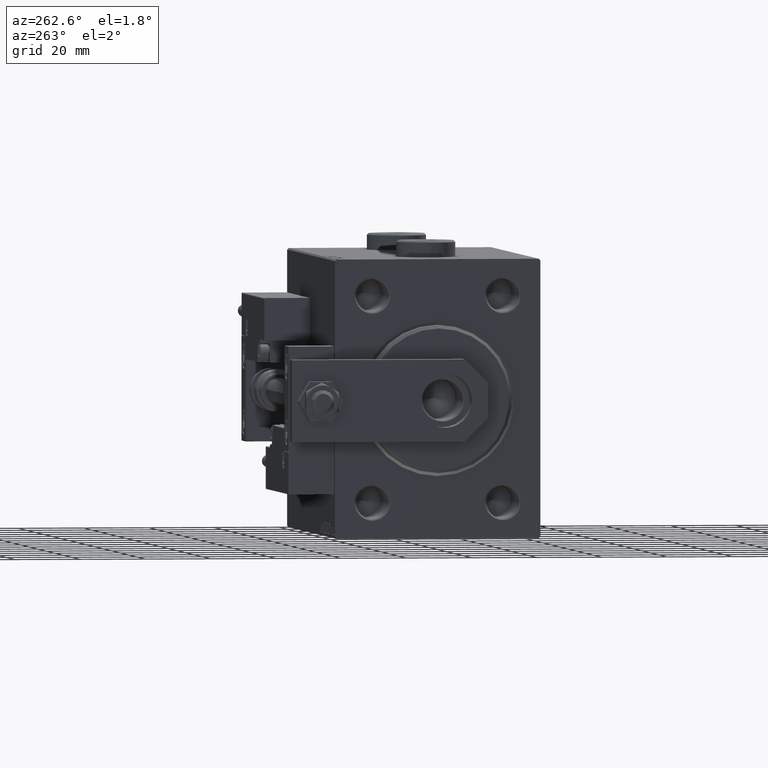
[diagram: clean part render]
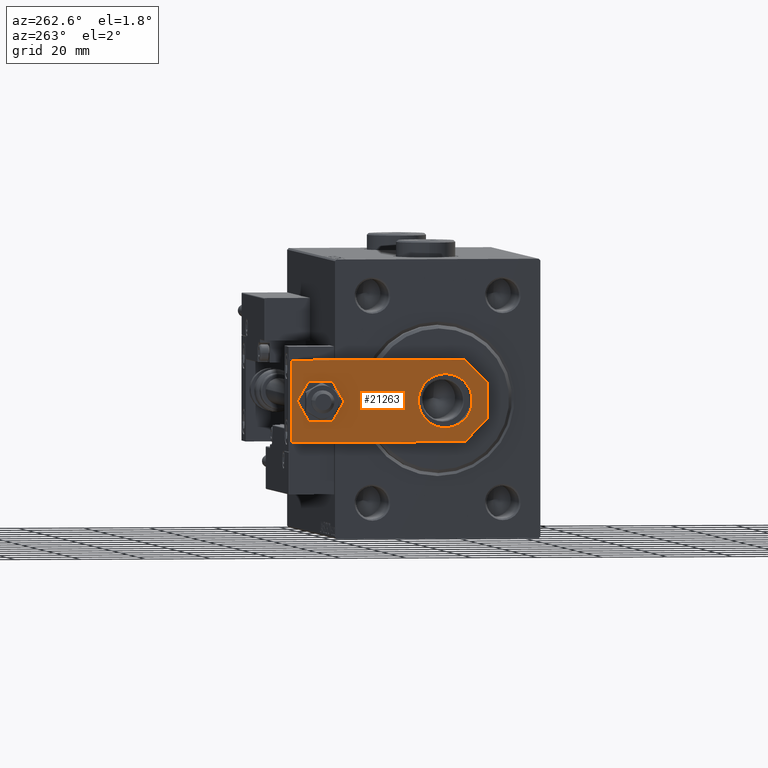
[diagram: same view with one face highlighted and labeled with its STEP entity id]
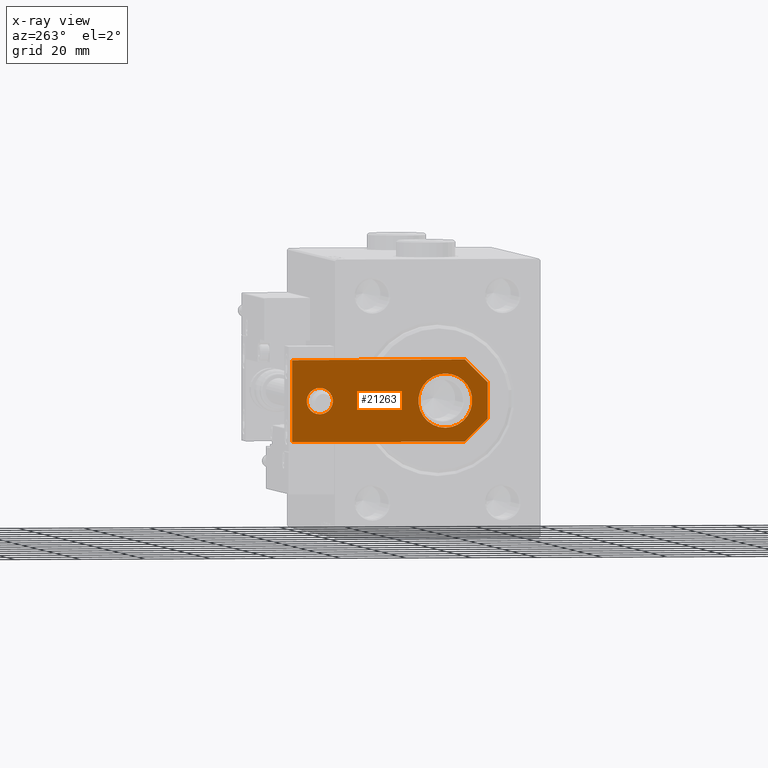
[diagram: x-ray of the same camera — body ghosted, the highlighted face saturated]
A machine part, auxiliary view. The second image highlights one B-rep face of the part: STEP entity #21263.
The next image is the same camera in x-ray: the body ghosted, the highlighted face saturated — about 0% of this face is hidden behind the body in this view.
In plain terms, the highlighted planar face has unit normal (-1, -0, 0).
Its self-contained STEP definition (entity closure, byte-faithful):
#778 = CARTESIAN_POINT ( 'NONE',  ( -9.629649721936179265E-32, 12.99999999999999822, 6.000000000000000000 ) ) ;
#813 = LINE ( 'NONE', #41203, #36043 ) ;
#1330 = CARTESIAN_POINT ( 'NONE',  ( -4.000000000000000888, 51.50000000000000000, 6.000000000000000000 ) ) ;
#3981 = VERTEX_POINT ( 'NONE', #37911 ) ;
#4040 = VECTOR ( 'NONE', #27954, 1000.000000000000000 ) ;
#4194 = VECTOR ( 'NONE', #41965, 1000.000000000000000 ) ;
#4513 = CARTESIAN_POINT ( 'NONE',  ( -12.49999999999999822, 60.00000000000000000, 6.000000000000000000 ) ) ;
#4576 = EDGE_LOOP ( 'NONE', ( #18992, #46181 ) ) ;
#6077 = LINE ( 'NONE', #18038, #4194 ) ;
#6445 = EDGE_CURVE ( 'NONE', #3981, #7671, #45943, .T. ) ;
#7097 = LINE ( 'NONE', #19575, #49867 ) ;
#7488 = CARTESIAN_POINT ( 'NONE',  ( -12.50000000000000355, 4.814824860968089633E-32, 6.000000000000000000 ) ) ;
#7671 = VERTEX_POINT ( 'NONE', #33655 ) ;
#8318 = ORIENTED_EDGE ( 'NONE', *, *, #49559, .T. ) ;
#9832 = AXIS2_PLACEMENT_3D ( 'NONE', #30579, #42011, #45754 ) ;
#10055 = AXIS2_PLACEMENT_3D ( 'NONE', #778, #49420, #16998 ) ;
#13319 = FACE_BOUND ( 'NONE', #42353, .T. ) ;
#14082 = VECTOR ( 'NONE', #41631, 999.9999999999998863 ) ;
#15144 = VERTEX_POINT ( 'NONE', #4513 ) ;
#15997 = LINE ( 'NONE', #7488, #4040 ) ;
#16518 = VERTEX_POINT ( 'NONE', #33163 ) ;
#16689 = ORIENTED_EDGE ( 'NONE', *, *, #6445, .F. ) ;
#16770 = DIRECTION ( 'NONE',  ( 0.000000000000000000, 1.000000000000000000, 0.000000000000000000 ) ) ;
#16998 = DIRECTION ( 'NONE',  ( 1.000000000000000000, 0.000000000000000000, 0.000000000000000000 ) ) ;
#18038 = CARTESIAN_POINT ( 'NONE',  ( -2.750000000000013767, -2.750000000000005773, 6.000000000000000000 ) ) ;
#18992 = ORIENTED_EDGE ( 'NONE', *, *, #30701, .F. ) ;
#19575 = CARTESIAN_POINT ( 'NONE',  ( -12.49999999999999822, 60.00000000000000000, 6.000000000000000000 ) ) ;
#20169 = CARTESIAN_POINT ( 'NONE',  ( -1.432611055310774642E-16, 51.50000000000000000, 6.000000000000000000 ) ) ;
#20731 = EDGE_LOOP ( 'NONE', ( #39294, #21388, #43144, #8318, #32626, #24981 ) ) ;
#21263 = ADVANCED_FACE ( 'NONE', ( #42530, #21540, #13319 ), #34039, .T. ) ;
#21388 = ORIENTED_EDGE ( 'NONE', *, *, #32724, .T. ) ;
#21540 = FACE_OUTER_BOUND ( 'NONE', #20731, .T. ) ;
#22212 = LINE ( 'NONE', #49872, #14082 ) ;
#22594 = CARTESIAN_POINT ( 'NONE',  ( 4.000000000000000888, 51.50000000000000000, 6.000000000000000000 ) ) ;
#22767 = AXIS2_PLACEMENT_3D ( 'NONE', #20169, #32932, #33452 ) ;
#22849 = CARTESIAN_POINT ( 'NONE',  ( -5.500000000000010658, 4.814824860968089633E-32, 6.000000000000000000 ) ) ;
#24981 = ORIENTED_EDGE ( 'NONE', *, *, #28414, .T. ) ;
#25887 = EDGE_CURVE ( 'NONE', #42089, #37638, #15997, .T. ) ;
#27281 = EDGE_CURVE ( 'NONE', #7671, #3981, #52375, .T. ) ;
#27448 = CARTESIAN_POINT ( 'NONE',  ( 12.50000000000000355, 60.00000000000000000, 6.000000000000000000 ) ) ;
#27668 = LINE ( 'NONE', #47871, #32869 ) ;
#27954 = DIRECTION ( 'NONE',  ( 1.000000000000000000, 0.000000000000000000, 0.000000000000000000 ) ) ;
#28259 = CARTESIAN_POINT ( 'NONE',  ( 5.499999999999976907, 4.814824860968089633E-32, 6.000000000000000000 ) ) ;
#28414 = EDGE_CURVE ( 'NONE', #35490, #15144, #27668, .T. ) ;
#28597 = DIRECTION ( 'NONE',  ( 1.000000000000000000, 0.000000000000000000, 0.000000000000000000 ) ) ;
#29763 = VERTEX_POINT ( 'NONE', #22594 ) ;
#30106 = EDGE_CURVE ( 'NONE', #15144, #16518, #7097, .T. ) ;
#30579 = CARTESIAN_POINT ( 'NONE',  ( 0.000000000000000000, 0.000000000000000000, 6.000000000000000000 ) ) ;
#30701 = EDGE_CURVE ( 'NONE', #37801, #29763, #50781, .T. ) ;
#32303 = CIRCLE ( 'NONE', #50962, 4.000000000000000888 ) ;
#32626 = ORIENTED_EDGE ( 'NONE', *, *, #43782, .T. ) ;
#32724 = EDGE_CURVE ( 'NONE', #16518, #42089, #6077, .T. ) ;
#32869 = VECTOR ( 'NONE', #35902, 1000.000000000000000 ) ;
#32932 = DIRECTION ( 'NONE',  ( 0.000000000000000000, 0.000000000000000000, 1.000000000000000000 ) ) ;
#33163 = CARTESIAN_POINT ( 'NONE',  ( -12.50000000000000355, 7.000000000000013323, 6.000000000000000000 ) ) ;
#33452 = DIRECTION ( 'NONE',  ( 1.000000000000000000, 0.000000000000000000, 0.000000000000000000 ) ) ;
#33655 = CARTESIAN_POINT ( 'NONE',  ( -8.250000000000000000, 12.99999999999999822, 6.000000000000000000 ) ) ;
#33712 = CARTESIAN_POINT ( 'NONE',  ( -9.629649721936179265E-32, 12.99999999999999822, 6.000000000000000000 ) ) ;
#34039 = PLANE ( 'NONE',  #9832 ) ;
#34234 = DIRECTION ( 'NONE',  ( 1.000000000000000000, 0.000000000000000000, 0.000000000000000000 ) ) ;
#35371 = EDGE_CURVE ( 'NONE', #29763, #37801, #32303, .T. ) ;
#35490 = VERTEX_POINT ( 'NONE', #27448 ) ;
#35902 = DIRECTION ( 'NONE',  ( -1.000000000000000000, 0.000000000000000000, 0.000000000000000000 ) ) ;
#36043 = VECTOR ( 'NONE', #16770, 1000.000000000000000 ) ;
#36589 = CARTESIAN_POINT ( 'NONE',  ( 12.50000000000000355, 7.000000000000006217, 6.000000000000000000 ) ) ;
#37045 = ORIENTED_EDGE ( 'NONE', *, *, #27281, .F. ) ;
#37609 = DIRECTION ( 'NONE',  ( 0.000000000000000000, 0.000000000000000000, 1.000000000000000000 ) ) ;
#37638 = VERTEX_POINT ( 'NONE', #28259 ) ;
#37801 = VERTEX_POINT ( 'NONE', #1330 ) ;
#37911 = CARTESIAN_POINT ( 'NONE',  ( 8.250000000000000000, 13.00000000000000000, 6.000000000000000000 ) ) ;
#38315 = AXIS2_PLACEMENT_3D ( 'NONE', #33712, #45429, #34234 ) ;
#39294 = ORIENTED_EDGE ( 'NONE', *, *, #30106, .T. ) ;
#41057 = CARTESIAN_POINT ( 'NONE',  ( -1.432611055310774642E-16, 51.50000000000000000, 6.000000000000000000 ) ) ;
#41203 = CARTESIAN_POINT ( 'NONE',  ( 12.50000000000000355, 4.814824860968089633E-32, 6.000000000000000000 ) ) ;
#41631 = DIRECTION ( 'NONE',  ( 0.7071067811865486830, 0.7071067811865464625, -0.000000000000000000 ) ) ;
#41965 = DIRECTION ( 'NONE',  ( 0.7071067811865465735, -0.7071067811865485719, 0.000000000000000000 ) ) ;
#42011 = DIRECTION ( 'NONE',  ( -0.000000000000000000, 0.000000000000000000, 1.000000000000000000 ) ) ;
#42089 = VERTEX_POINT ( 'NONE', #22849 ) ;
#42353 = EDGE_LOOP ( 'NONE', ( #37045, #16689 ) ) ;
#42530 = FACE_BOUND ( 'NONE', #4576, .T. ) ;
#42557 = VERTEX_POINT ( 'NONE', #36589 ) ;
#43144 = ORIENTED_EDGE ( 'NONE', *, *, #25887, .T. ) ;
#43782 = EDGE_CURVE ( 'NONE', #42557, #35490, #813, .T. ) ;
#45429 = DIRECTION ( 'NONE',  ( 0.000000000000000000, 0.000000000000000000, 1.000000000000000000 ) ) ;
#45754 = DIRECTION ( 'NONE',  ( 1.000000000000000000, 0.000000000000000000, 0.000000000000000000 ) ) ;
#45943 = CIRCLE ( 'NONE', #38315, 8.250000000000000000 ) ;
#46181 = ORIENTED_EDGE ( 'NONE', *, *, #35371, .F. ) ;
#47503 = DIRECTION ( 'NONE',  ( -8.673617379884035472E-17, -1.000000000000000000, 0.000000000000000000 ) ) ;
#47871 = CARTESIAN_POINT ( 'NONE',  ( 12.50000000000000355, 60.00000000000000000, 6.000000000000000000 ) ) ;
#49420 = DIRECTION ( 'NONE',  ( 0.000000000000000000, 0.000000000000000000, 1.000000000000000000 ) ) ;
#49559 = EDGE_CURVE ( 'NONE', #37638, #42557, #22212, .T. ) ;
#49867 = VECTOR ( 'NONE', #47503, 1000.000000000000000 ) ;
#49872 = CARTESIAN_POINT ( 'NONE',  ( 2.749999999999980016, -2.749999999999988010, 6.000000000000000000 ) ) ;
#50781 = CIRCLE ( 'NONE', #22767, 4.000000000000000888 ) ;
#50962 = AXIS2_PLACEMENT_3D ( 'NONE', #41057, #37609, #28597 ) ;
#52375 = CIRCLE ( 'NONE', #10055, 8.250000000000000000 ) ;